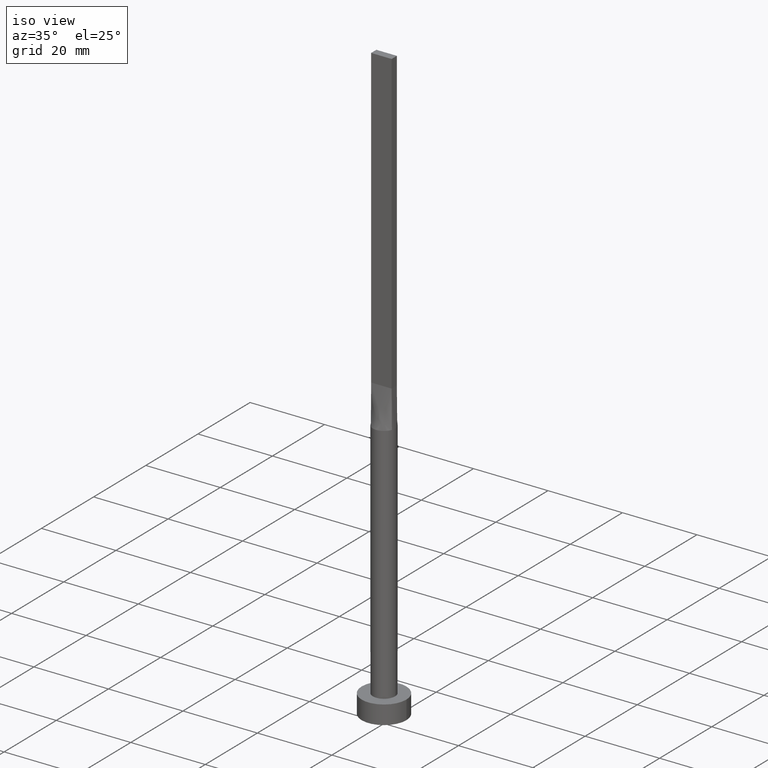
[diagram: clean part render]
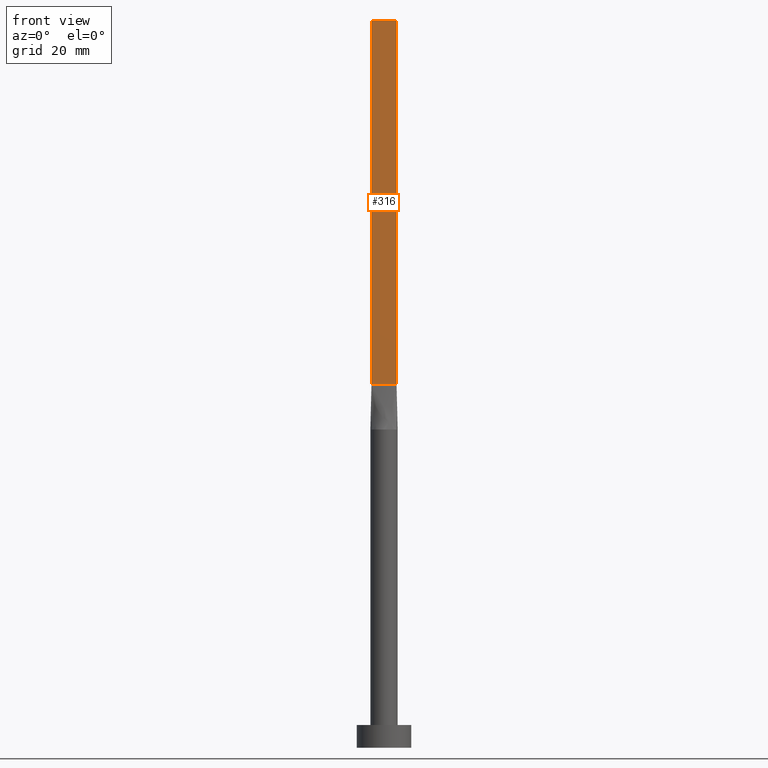
[diagram: tour spotlight — one face highlighted and labeled with its STEP entity id]
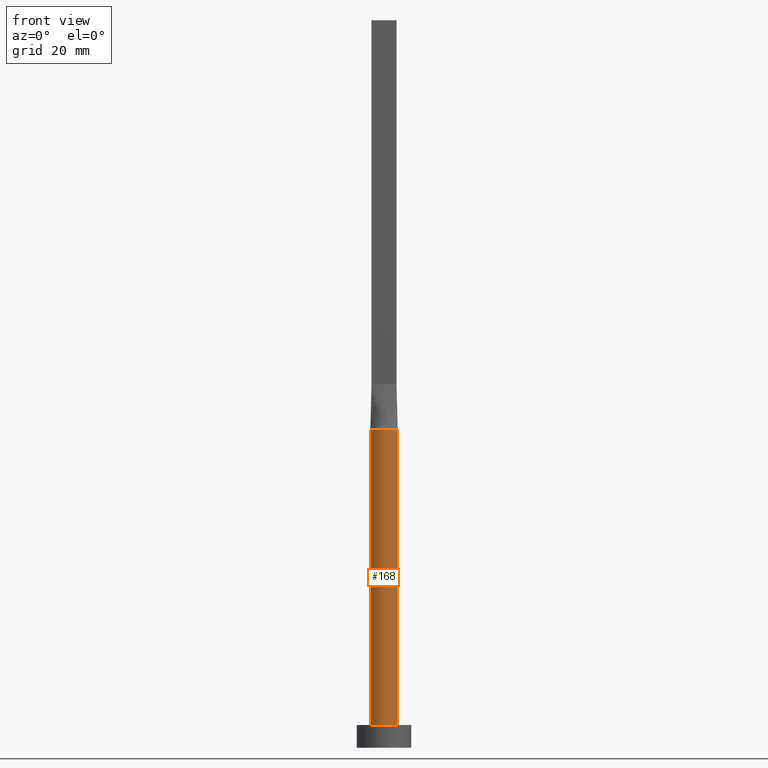
[diagram: tour spotlight — one face highlighted and labeled with its STEP entity id]
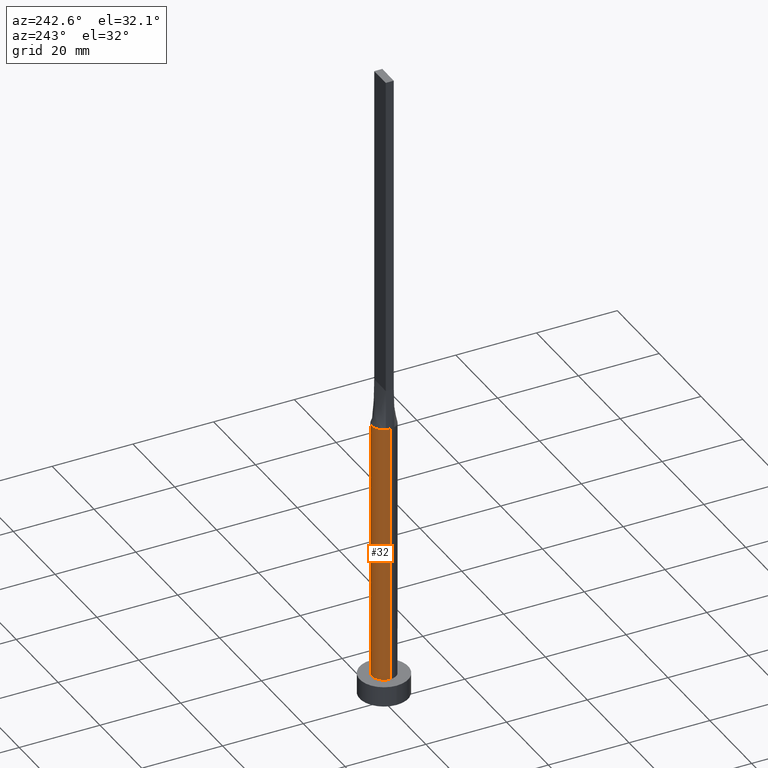
[diagram: tour spotlight — one face highlighted and labeled with its STEP entity id]
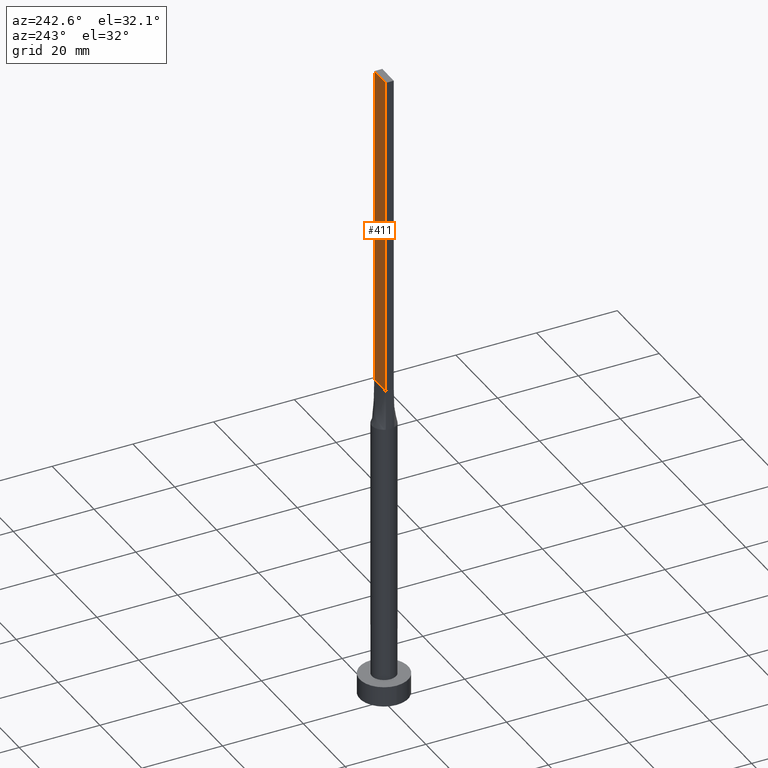
[diagram: tour spotlight — one face highlighted and labeled with its STEP entity id]
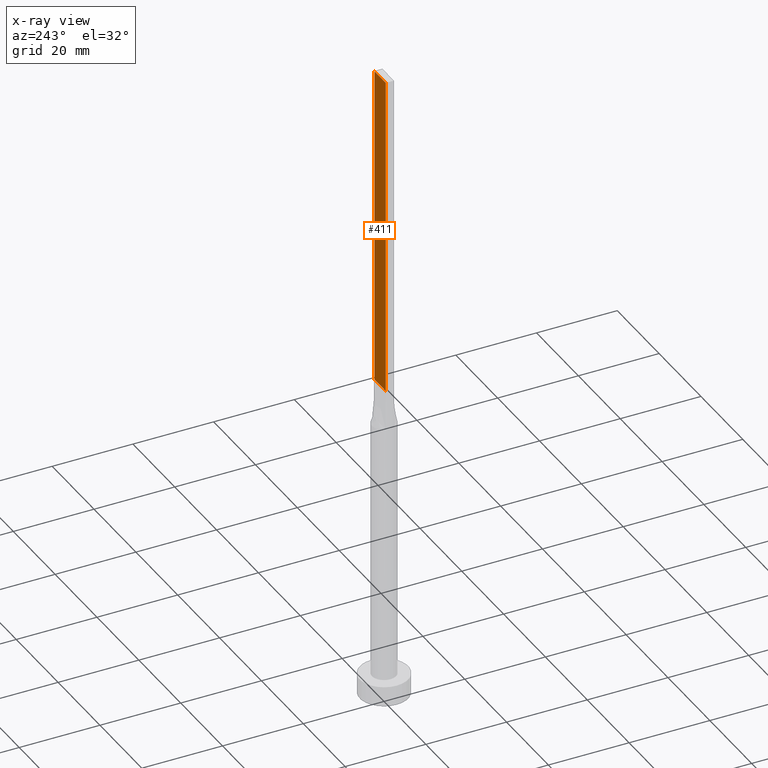
[diagram: x-ray of the same camera — body ghosted, this tour face saturated]
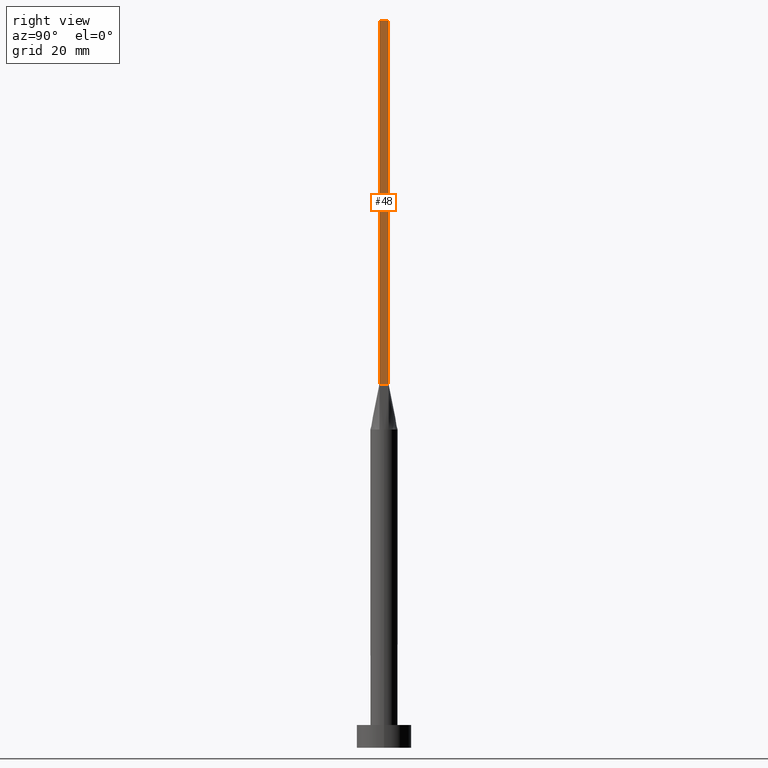
[diagram: tour spotlight — one face highlighted and labeled with its STEP entity id]
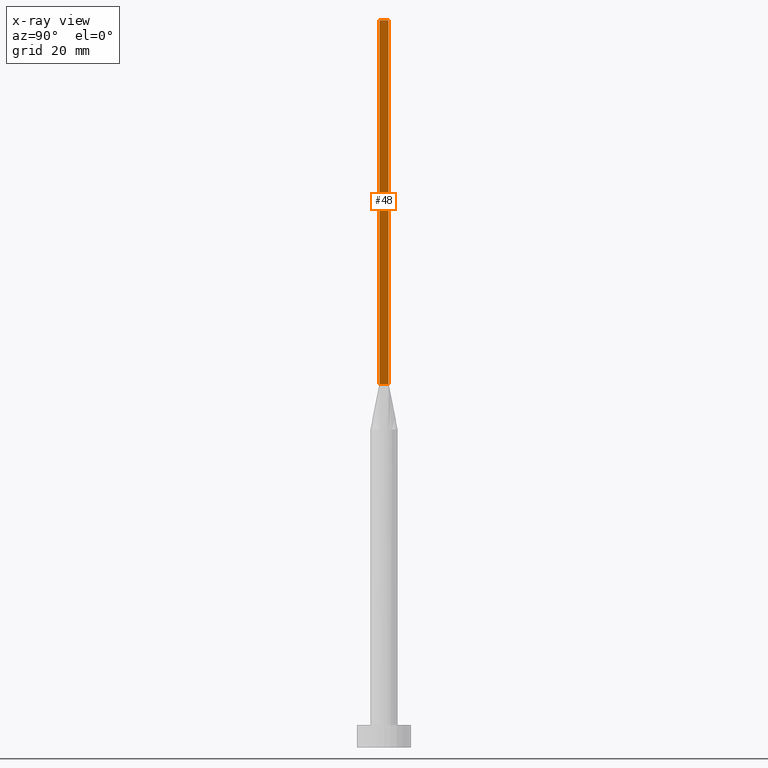
[diagram: x-ray of the same camera — body ghosted, this tour face saturated]
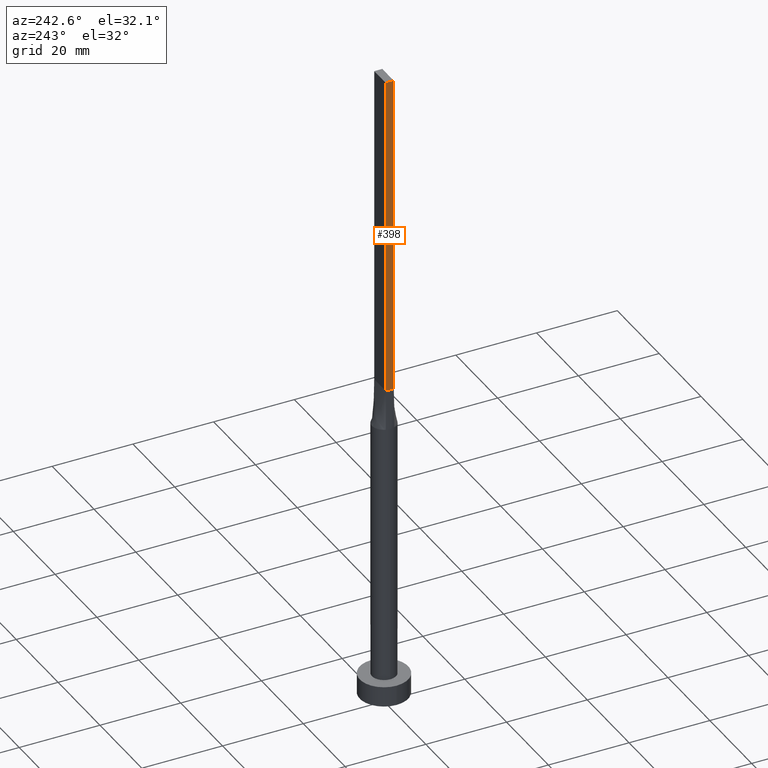
[diagram: tour spotlight — one face highlighted and labeled with its STEP entity id]
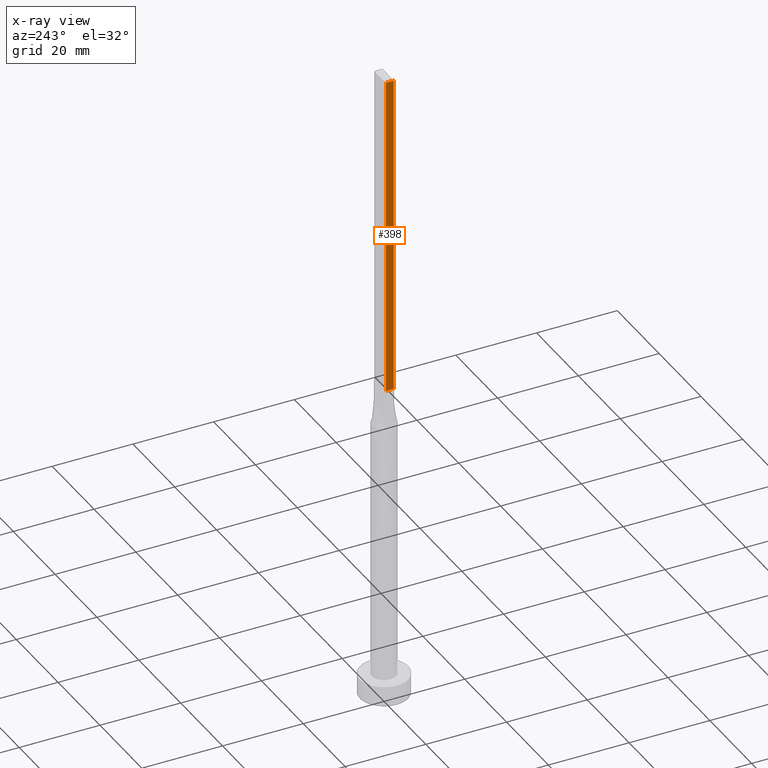
[diagram: x-ray of the same camera — body ghosted, this tour face saturated]
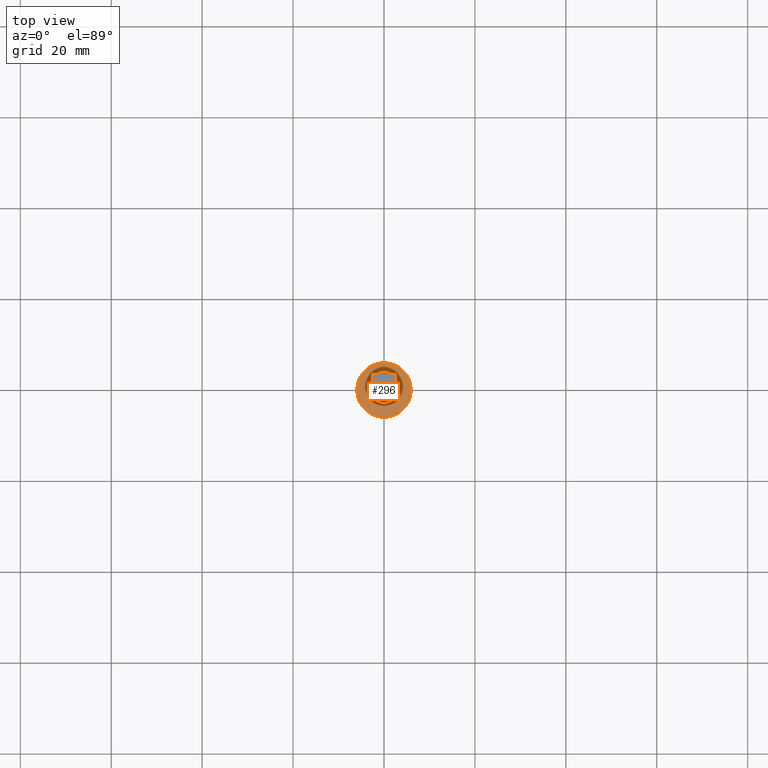
[diagram: tour spotlight — one face highlighted and labeled with its STEP entity id]
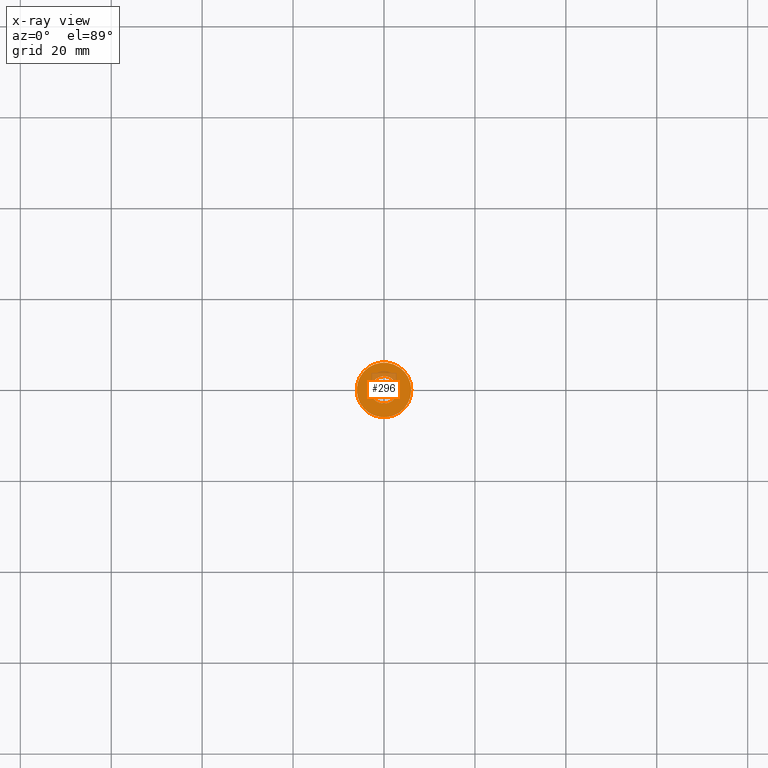
[diagram: x-ray of the same camera — body ghosted, this tour face saturated]
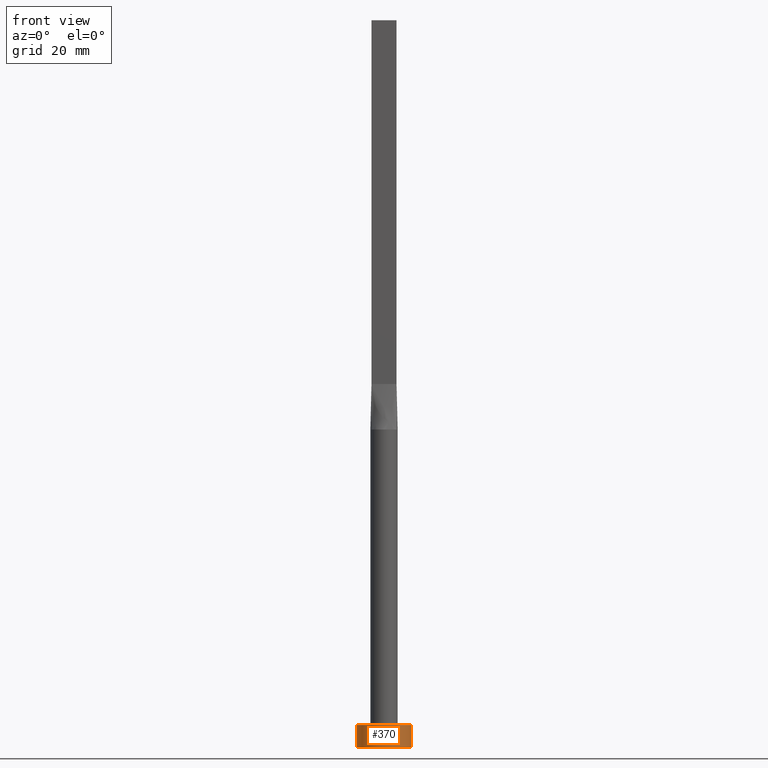
[diagram: tour spotlight — one face highlighted and labeled with its STEP entity id]
A machine part: a face-by-face anatomy tour. The part has 15 B-rep faces; the first image is the clean iso view, then the 8 largest visible faces are spotlighted one at a time (largest first), each with its STEP entity span.

Face 1 — front view, entity #316. In plain terms, the highlighted planar face has unit normal (0, 1, -0).
Definition (entity closure, byte-faithful):
#2 = EDGE_CURVE ( 'NONE', #350, #322, #468, .T. ) ;
#16 = ORIENTED_EDGE ( 'NONE', *, *, #57, .F. ) ;
#20 = LINE ( 'NONE', #513, #576 ) ;
#57 = EDGE_CURVE ( 'NONE', #322, #462, #249, .T. ) ;
#68 = DIRECTION ( 'NONE',  ( 7.885106708985487801E-17, 1.000000000000000000, -0.000000000000000000 ) ) ;
#87 = LINE ( 'NONE', #257, #116 ) ;
#116 = VECTOR ( 'NONE', #217, 1000.000000000000000 ) ;
#143 = EDGE_CURVE ( 'NONE', #350, #507, #20, .T. ) ;
#144 = DIRECTION ( 'NONE',  ( -1.000000000000000000, 7.885106708985487801E-17, 0.000000000000000000 ) ) ;
#148 = ORIENTED_EDGE ( 'NONE', *, *, #2, .F. ) ;
#159 = FACE_OUTER_BOUND ( 'NONE', #477, .T. ) ;
#174 = CARTESIAN_POINT ( 'NONE',  ( 2.750000000000000000, -0.9999999999999997780, 80.00000000000000000 ) ) ;
#211 = DIRECTION ( 'NONE',  ( -0.000000000000000000, -0.000000000000000000, -1.000000000000000000 ) ) ;
#217 = DIRECTION ( 'NONE',  ( 1.000000000000000000, -7.885106708985487801E-17, 0.000000000000000000 ) ) ;
#223 = CARTESIAN_POINT ( 'NONE',  ( -2.750000000000000000, -0.9999999999999993339, 80.00000000000000000 ) ) ;
#226 = EDGE_CURVE ( 'NONE', #507, #462, #87, .T. ) ;
#229 = CARTESIAN_POINT ( 'NONE',  ( -2.750000000000000000, -0.9999999999999993339, 160.0000000000000000 ) ) ;
#236 = VECTOR ( 'NONE', #211, 1000.000000000000000 ) ;
#239 = CARTESIAN_POINT ( 'NONE',  ( -2.750000000000000000, -0.9999999999999993339, 160.0000000000000000 ) ) ;
#240 = AXIS2_PLACEMENT_3D ( 'NONE', #229, #68, #144 ) ;
#247 = CARTESIAN_POINT ( 'NONE',  ( -2.750000000000000000, -0.9999999999999993339, 160.0000000000000000 ) ) ;
#249 = LINE ( 'NONE', #440, #236 ) ;
#254 = DIRECTION ( 'NONE',  ( 1.000000000000000000, -7.885106708985487801E-17, 0.000000000000000000 ) ) ;
#257 = CARTESIAN_POINT ( 'NONE',  ( -2.750000000000000000, -0.9999999999999993339, 80.00000000000000000 ) ) ;
#286 = ORIENTED_EDGE ( 'NONE', *, *, #143, .T. ) ;
#316 = ADVANCED_FACE ( 'NONE', ( #159 ), #326, .F. ) ;
#322 = VERTEX_POINT ( 'NONE', #415 ) ;
#326 = PLANE ( 'NONE',  #240 ) ;
#350 = VERTEX_POINT ( 'NONE', #247 ) ;
#399 = ORIENTED_EDGE ( 'NONE', *, *, #226, .T. ) ;
#415 = CARTESIAN_POINT ( 'NONE',  ( 2.750000000000000000, -0.9999999999999997780, 160.0000000000000000 ) ) ;
#420 = DIRECTION ( 'NONE',  ( -0.000000000000000000, -0.000000000000000000, -1.000000000000000000 ) ) ;
#440 = CARTESIAN_POINT ( 'NONE',  ( 2.750000000000000000, -0.9999999999999997780, 160.0000000000000000 ) ) ;
#462 = VERTEX_POINT ( 'NONE', #174 ) ;
#468 = LINE ( 'NONE', #239, #554 ) ;
#477 = EDGE_LOOP ( 'NONE', ( #399, #16, #148, #286 ) ) ;
#507 = VERTEX_POINT ( 'NONE', #223 ) ;
#513 = CARTESIAN_POINT ( 'NONE',  ( -2.750000000000000000, -0.9999999999999993339, 160.0000000000000000 ) ) ;
#554 = VECTOR ( 'NONE', #254, 1000.000000000000000 ) ;
#576 = VECTOR ( 'NONE', #420, 1000.000000000000000 ) ;

Face 2 — front view, entity #168. In plain terms, the highlighted cylindrical surface (edge-blend (fillet) strip) has radius 3 mm, axis along (-0, -0, -1).
Definition (entity closure, byte-faithful):
#6 = EDGE_LOOP ( 'NONE', ( #13, #372, #408, #58, #325, #424 ) ) ;
#13 = ORIENTED_EDGE ( 'NONE', *, *, #501, .F. ) ;
#36 = DIRECTION ( 'NONE',  ( 0.000000000000000000, 0.000000000000000000, 1.000000000000000000 ) ) ;
#47 = CARTESIAN_POINT ( 'NONE',  ( 0.000000000000000000, 0.000000000000000000, 5.000000000000000000 ) ) ;
#51 = AXIS2_PLACEMENT_3D ( 'NONE', #450, #220, #83 ) ;
#56 = CARTESIAN_POINT ( 'NONE',  ( 3.000000000000000444, 7.514166843208536743E-18, 70.00000000000000000 ) ) ;
#58 = ORIENTED_EDGE ( 'NONE', *, *, #385, .F. ) ;
#67 = CARTESIAN_POINT ( 'NONE',  ( 0.000000000000000000, 0.000000000000000000, 70.00000000000000000 ) ) ;
#71 = CARTESIAN_POINT ( 'NONE',  ( -2.819413526938078007, -1.025241406939941369, 70.00000000000000000 ) ) ;
#83 = DIRECTION ( 'NONE',  ( 1.000000000000000000, 0.000000000000000000, 0.000000000000000000 ) ) ;
#104 = CARTESIAN_POINT ( 'NONE',  ( 3.000000000000000444, 3.673940397442060361E-16, 5.000000000000000000 ) ) ;
#106 = DIRECTION ( 'NONE',  ( -0.000000000000000000, -0.000000000000000000, -1.000000000000000000 ) ) ;
#121 = CARTESIAN_POINT ( 'NONE',  ( 2.819430526142641558, -1.025247683279450817, 70.00000000000000000 ) ) ;
#127 = AXIS2_PLACEMENT_3D ( 'NONE', #67, #285, #238 ) ;
#138 = VERTEX_POINT ( 'NONE', #71 ) ;
#142 = CARTESIAN_POINT ( 'NONE',  ( 3.000000000000000444, 3.673940397442060361E-16, 70.00000000000000000 ) ) ;
#150 = LINE ( 'NONE', #321, #166 ) ;
#154 = FACE_OUTER_BOUND ( 'NONE', #6, .T. ) ;
#166 = VECTOR ( 'NONE', #106, 1000.000000000000000 ) ;
#168 = ADVANCED_FACE ( 'NONE', ( #154 ), #379, .T. ) ;
#208 = AXIS2_PLACEMENT_3D ( 'NONE', #47, #391, #487 ) ;
#216 = EDGE_CURVE ( 'NONE', #138, #359, #486, .T. ) ;
#220 = DIRECTION ( 'NONE',  ( 0.000000000000000000, 0.000000000000000000, 1.000000000000000000 ) ) ;
#238 = DIRECTION ( 'NONE',  ( -1.000000000000000000, 0.000000000000000000, 0.000000000000000000 ) ) ;
#251 = DIRECTION ( 'NONE',  ( 1.000000000000000000, 0.000000000000000000, 0.000000000000000000 ) ) ;
#285 = DIRECTION ( 'NONE',  ( -0.000000000000000000, -0.000000000000000000, -1.000000000000000000 ) ) ;
#313 = VERTEX_POINT ( 'NONE', #104 ) ;
#315 = VECTOR ( 'NONE', #459, 1000.000000000000000 ) ;
#321 = CARTESIAN_POINT ( 'NONE',  ( -3.000000000000000444, 0.000000000000000000, 70.00000000000000000 ) ) ;
#325 = ORIENTED_EDGE ( 'NONE', *, *, #345, .T. ) ;
#335 = AXIS2_PLACEMENT_3D ( 'NONE', #344, #490, #533 ) ;
#344 = CARTESIAN_POINT ( 'NONE',  ( 0.000000000000000000, 0.000000000000000000, 70.00000000000000000 ) ) ;
#345 = EDGE_CURVE ( 'NONE', #456, #453, #150, .T. ) ;
#359 = VERTEX_POINT ( 'NONE', #121 ) ;
#372 = ORIENTED_EDGE ( 'NONE', *, *, #393, .F. ) ;
#379 = CYLINDRICAL_SURFACE ( 'NONE', #127, 3.000000000000000444 ) ;
#385 = EDGE_CURVE ( 'NONE', #456, #138, #463, .T. ) ;
#388 = CIRCLE ( 'NONE', #208, 3.000000000000000444 ) ;
#391 = DIRECTION ( 'NONE',  ( 0.000000000000000000, 0.000000000000000000, 1.000000000000000000 ) ) ;
#393 = EDGE_CURVE ( 'NONE', #359, #465, #397, .T. ) ;
#394 = CARTESIAN_POINT ( 'NONE',  ( -3.000000000000000444, -1.370010780910363192E-16, 70.00000000000000000 ) ) ;
#397 = CIRCLE ( 'NONE', #335, 3.000000000000000444 ) ;
#402 = CARTESIAN_POINT ( 'NONE',  ( -3.000000000000000444, 0.000000000000000000, 5.000000000000000000 ) ) ;
#408 = ORIENTED_EDGE ( 'NONE', *, *, #216, .F. ) ;
#424 = ORIENTED_EDGE ( 'NONE', *, *, #439, .T. ) ;
#439 = EDGE_CURVE ( 'NONE', #453, #313, #388, .T. ) ;
#450 = CARTESIAN_POINT ( 'NONE',  ( 0.000000000000000000, 0.000000000000000000, 70.00000000000000000 ) ) ;
#453 = VERTEX_POINT ( 'NONE', #402 ) ;
#456 = VERTEX_POINT ( 'NONE', #394 ) ;
#457 = LINE ( 'NONE', #142, #315 ) ;
#459 = DIRECTION ( 'NONE',  ( -0.000000000000000000, -0.000000000000000000, -1.000000000000000000 ) ) ;
#463 = CIRCLE ( 'NONE', #474, 3.000000000000000444 ) ;
#465 = VERTEX_POINT ( 'NONE', #56 ) ;
#474 = AXIS2_PLACEMENT_3D ( 'NONE', #478, #36, #251 ) ;
#478 = CARTESIAN_POINT ( 'NONE',  ( 0.000000000000000000, 0.000000000000000000, 70.00000000000000000 ) ) ;
#486 = CIRCLE ( 'NONE', #51, 3.000000000000000444 ) ;
#487 = DIRECTION ( 'NONE',  ( 1.000000000000000000, 0.000000000000000000, 0.000000000000000000 ) ) ;
#490 = DIRECTION ( 'NONE',  ( 0.000000000000000000, 0.000000000000000000, 1.000000000000000000 ) ) ;
#501 = EDGE_CURVE ( 'NONE', #465, #313, #457, .T. ) ;
#533 = DIRECTION ( 'NONE',  ( 1.000000000000000000, 8.881784197001252323E-16, 0.000000000000000000 ) ) ;

Face 3 — auxiliary view, entity #32. In plain terms, the highlighted cylindrical surface (edge-blend (fillet) strip) has radius 3 mm, axis along (-0, -0, -1).
Definition (entity closure, byte-faithful):
#4 = CARTESIAN_POINT ( 'NONE',  ( -1.627925520694712747, 2.539128397820341831, 70.00000000000000000 ) ) ;
#9 = VERTEX_POINT ( 'NONE', #536 ) ;
#10 = EDGE_CURVE ( 'NONE', #465, #300, #511, .T. ) ;
#12 = CARTESIAN_POINT ( 'NONE',  ( 0.000000000000000000, 0.000000000000000000, 70.00000000000000000 ) ) ;
#29 = CARTESIAN_POINT ( 'NONE',  ( 0.000000000000000000, 0.000000000000000000, 5.000000000000000000 ) ) ;
#32 = ADVANCED_FACE ( 'NONE', ( #259 ), #253, .T. ) ;
#43 = CARTESIAN_POINT ( 'NONE',  ( 2.739088299662392867, 1.246032108968142538, 70.00000000000002842 ) ) ;
#56 = CARTESIAN_POINT ( 'NONE',  ( 3.000000000000000444, 7.514166843208536743E-18, 70.00000000000000000 ) ) ;
#70 = B_SPLINE_CURVE_WITH_KNOTS ( 'NONE', 3,
 ( #406, #43, #496, #535, #360, #445, #489, #252, #441, #129, #297, #396, #4, #349, #538, #130, #298, #493 ),
 .UNSPECIFIED., .F., .F.,
 ( 4, 2, 2, 2, 2, 2, 2, 2, 4 ),
 ( 0.000000000000000000, 0.1249999999999998890, 0.2499999999999997780, 0.3749999999999997780, 0.4999999999999997780, 0.6249999999999997780, 0.7499999999999997780, 0.8749999999999998890, 1.000000000000000000 ),
 .UNSPECIFIED. ) ;
#89 = EDGE_CURVE ( 'NONE', #313, #453, #481, .T. ) ;
#104 = CARTESIAN_POINT ( 'NONE',  ( 3.000000000000000444, 3.673940397442060361E-16, 5.000000000000000000 ) ) ;
#106 = DIRECTION ( 'NONE',  ( -0.000000000000000000, -0.000000000000000000, -1.000000000000000000 ) ) ;
#112 = ORIENTED_EDGE ( 'NONE', *, *, #10, .F. ) ;
#124 = DIRECTION ( 'NONE',  ( 1.000000000000000000, 0.000000000000000000, 0.000000000000000000 ) ) ;
#129 = CARTESIAN_POINT ( 'NONE',  ( -0.3502136323054376721, 2.999999999999999112, 70.00000000000001421 ) ) ;
#130 = CARTESIAN_POINT ( 'NONE',  ( -2.625980160873452096, 1.476334031700886396, 69.99999999999998579 ) ) ;
#137 = AXIS2_PLACEMENT_3D ( 'NONE', #12, #352, #175 ) ;
#142 = CARTESIAN_POINT ( 'NONE',  ( 3.000000000000000444, 3.673940397442060361E-16, 70.00000000000000000 ) ) ;
#150 = LINE ( 'NONE', #321, #166 ) ;
#153 = CIRCLE ( 'NONE', #137, 3.000000000000000444 ) ;
#166 = VECTOR ( 'NONE', #106, 1000.000000000000000 ) ;
#175 = DIRECTION ( 'NONE',  ( 1.000000000000000000, 0.000000000000000000, 0.000000000000000000 ) ) ;
#178 = ORIENTED_EDGE ( 'NONE', *, *, #501, .T. ) ;
#180 = EDGE_CURVE ( 'NONE', #9, #456, #153, .T. ) ;
#189 = AXIS2_PLACEMENT_3D ( 'NONE', #342, #351, #124 ) ;
#190 = AXIS2_PLACEMENT_3D ( 'NONE', #212, #447, #341 ) ;
#191 = ORIENTED_EDGE ( 'NONE', *, *, #89, .T. ) ;
#196 = DIRECTION ( 'NONE',  ( 1.000000000000000000, 0.000000000000000000, 0.000000000000000000 ) ) ;
#212 = CARTESIAN_POINT ( 'NONE',  ( 0.000000000000000000, 0.000000000000000000, 70.00000000000000000 ) ) ;
#221 = EDGE_CURVE ( 'NONE', #300, #9, #70, .T. ) ;
#252 = CARTESIAN_POINT ( 'NONE',  ( 0.6998073349918605413, 2.936959335800557014, 69.99999999999997158 ) ) ;
#253 = CYLINDRICAL_SURFACE ( 'NONE', #190, 3.000000000000000444 ) ;
#259 = FACE_OUTER_BOUND ( 'NONE', #268, .T. ) ;
#268 = EDGE_LOOP ( 'NONE', ( #112, #178, #191, #517, #510, #471 ) ) ;
#297 = CARTESIAN_POINT ( 'NONE',  ( -0.6998073349918608743, 2.936959335800557014, 70.00000000000000000 ) ) ;
#298 = CARTESIAN_POINT ( 'NONE',  ( -2.739088299662392423, 1.246032108968142316, 70.00000000000000000 ) ) ;
#300 = VERTEX_POINT ( 'NONE', #562 ) ;
#313 = VERTEX_POINT ( 'NONE', #104 ) ;
#315 = VECTOR ( 'NONE', #459, 1000.000000000000000 ) ;
#321 = CARTESIAN_POINT ( 'NONE',  ( -3.000000000000000444, 0.000000000000000000, 70.00000000000000000 ) ) ;
#331 = DIRECTION ( 'NONE',  ( 0.000000000000000000, 0.000000000000000000, 1.000000000000000000 ) ) ;
#341 = DIRECTION ( 'NONE',  ( -1.000000000000000000, 0.000000000000000000, 0.000000000000000000 ) ) ;
#342 = CARTESIAN_POINT ( 'NONE',  ( 0.000000000000000000, 0.000000000000000000, 70.00000000000000000 ) ) ;
#345 = EDGE_CURVE ( 'NONE', #456, #453, #150, .T. ) ;
#349 = CARTESIAN_POINT ( 'NONE',  ( -2.115507543051069916, 2.149870311632977593, 69.99999999999998579 ) ) ;
#351 = DIRECTION ( 'NONE',  ( 0.000000000000000000, 0.000000000000000000, 1.000000000000000000 ) ) ;
#352 = DIRECTION ( 'NONE',  ( 0.000000000000000000, 0.000000000000000000, 1.000000000000000000 ) ) ;
#360 = CARTESIAN_POINT ( 'NONE',  ( 2.115507543051069916, 2.149870311632976705, 70.00000000000001421 ) ) ;
#394 = CARTESIAN_POINT ( 'NONE',  ( -3.000000000000000444, -1.370010780910363192E-16, 70.00000000000000000 ) ) ;
#396 = CARTESIAN_POINT ( 'NONE',  ( -1.338960936578149408, 2.706038443291637119, 69.99999999999998579 ) ) ;
#402 = CARTESIAN_POINT ( 'NONE',  ( -3.000000000000000444, 0.000000000000000000, 5.000000000000000000 ) ) ;
#406 = CARTESIAN_POINT ( 'NONE',  ( 2.819412401233197141, 1.025240989080170806, 70.00000000000000000 ) ) ;
#441 = CARTESIAN_POINT ( 'NONE',  ( 0.3502136323054376721, 3.000000000000000444, 70.00000000000000000 ) ) ;
#445 = CARTESIAN_POINT ( 'NONE',  ( 1.627925520694712080, 2.539128397820340943, 69.99999999999998579 ) ) ;
#447 = DIRECTION ( 'NONE',  ( -0.000000000000000000, -0.000000000000000000, -1.000000000000000000 ) ) ;
#453 = VERTEX_POINT ( 'NONE', #402 ) ;
#456 = VERTEX_POINT ( 'NONE', #394 ) ;
#457 = LINE ( 'NONE', #142, #315 ) ;
#459 = DIRECTION ( 'NONE',  ( -0.000000000000000000, -0.000000000000000000, -1.000000000000000000 ) ) ;
#465 = VERTEX_POINT ( 'NONE', #56 ) ;
#471 = ORIENTED_EDGE ( 'NONE', *, *, #221, .F. ) ;
#481 = CIRCLE ( 'NONE', #530, 3.000000000000000444 ) ;
#489 = CARTESIAN_POINT ( 'NONE',  ( 1.338960936578149630, 2.706038443291637563, 70.00000000000000000 ) ) ;
#493 = CARTESIAN_POINT ( 'NONE',  ( -2.819429393986302657, 1.025247261300842760, 70.00000000000000000 ) ) ;
#496 = CARTESIAN_POINT ( 'NONE',  ( 2.625980160873452540, 1.476334031700886618, 70.00000000000000000 ) ) ;
#501 = EDGE_CURVE ( 'NONE', #465, #313, #457, .T. ) ;
#510 = ORIENTED_EDGE ( 'NONE', *, *, #180, .F. ) ;
#511 = CIRCLE ( 'NONE', #189, 3.000000000000000444 ) ;
#517 = ORIENTED_EDGE ( 'NONE', *, *, #345, .F. ) ;
#530 = AXIS2_PLACEMENT_3D ( 'NONE', #29, #331, #196 ) ;
#535 = CARTESIAN_POINT ( 'NONE',  ( 2.314486317179579977, 1.928337902455807384, 70.00000000000002842 ) ) ;
#536 = CARTESIAN_POINT ( 'NONE',  ( -2.819429393986302657, 1.025247261300842760, 70.00000000000000000 ) ) ;
#538 = CARTESIAN_POINT ( 'NONE',  ( -2.314486317179579977, 1.928337902455808051, 70.00000000000000000 ) ) ;
#562 = CARTESIAN_POINT ( 'NONE',  ( 2.819412401233197141, 1.025240989080170806, 70.00000000000000000 ) ) ;

Face 4 — auxiliary view, entity #411. An x-ray twin of the same camera follows (body ghosted, this face saturated) — the face is partly hidden behind the body. In plain terms, the highlighted planar face has unit normal (0, -1, 0).
Definition (entity closure, byte-faithful):
#15 = EDGE_LOOP ( 'NONE', ( #105, #198, #545, #31 ) ) ;
#22 = DIRECTION ( 'NONE',  ( -1.000000000000000000, 0.000000000000000000, 0.000000000000000000 ) ) ;
#31 = ORIENTED_EDGE ( 'NONE', *, *, #126, .T. ) ;
#39 = CARTESIAN_POINT ( 'NONE',  ( 2.749999999999999556, 1.000000000000000000, 160.0000000000000000 ) ) ;
#49 = VERTEX_POINT ( 'NONE', #79 ) ;
#64 = EDGE_CURVE ( 'NONE', #49, #181, #392, .T. ) ;
#72 = VERTEX_POINT ( 'NONE', #369 ) ;
#78 = VECTOR ( 'NONE', #577, 1000.000000000000000 ) ;
#79 = CARTESIAN_POINT ( 'NONE',  ( -2.749999999999999556, 1.000000000000000000, 160.0000000000000000 ) ) ;
#96 = VECTOR ( 'NONE', #22, 1000.000000000000000 ) ;
#105 = ORIENTED_EDGE ( 'NONE', *, *, #544, .T. ) ;
#111 = DIRECTION ( 'NONE',  ( -0.000000000000000000, -0.000000000000000000, -1.000000000000000000 ) ) ;
#126 = EDGE_CURVE ( 'NONE', #272, #72, #423, .T. ) ;
#147 = DIRECTION ( 'NONE',  ( 0.000000000000000000, -1.000000000000000000, 0.000000000000000000 ) ) ;
#156 = DIRECTION ( 'NONE',  ( 0.000000000000000000, -0.000000000000000000, -1.000000000000000000 ) ) ;
#171 = CARTESIAN_POINT ( 'NONE',  ( -2.749999999999999556, 1.000000000000000000, 160.0000000000000000 ) ) ;
#181 = VERTEX_POINT ( 'NONE', #347 ) ;
#198 = ORIENTED_EDGE ( 'NONE', *, *, #64, .F. ) ;
#215 = VECTOR ( 'NONE', #431, 1000.000000000000000 ) ;
#272 = VERTEX_POINT ( 'NONE', #39 ) ;
#275 = CARTESIAN_POINT ( 'NONE',  ( 2.749999999999999556, 1.000000000000000000, 160.0000000000000000 ) ) ;
#280 = EDGE_CURVE ( 'NONE', #272, #49, #330, .T. ) ;
#288 = CARTESIAN_POINT ( 'NONE',  ( 2.749999999999999556, 1.000000000000000000, 160.0000000000000000 ) ) ;
#324 = LINE ( 'NONE', #559, #215 ) ;
#330 = LINE ( 'NONE', #523, #96 ) ;
#347 = CARTESIAN_POINT ( 'NONE',  ( -2.749999999999999556, 1.000000000000000000, 80.00000000000000000 ) ) ;
#369 = CARTESIAN_POINT ( 'NONE',  ( 2.749999999999999556, 1.000000000000000000, 80.00000000000000000 ) ) ;
#371 = FACE_OUTER_BOUND ( 'NONE', #15, .T. ) ;
#392 = LINE ( 'NONE', #171, #78 ) ;
#411 = ADVANCED_FACE ( 'NONE', ( #371 ), #412, .F. ) ;
#412 = PLANE ( 'NONE',  #526 ) ;
#423 = LINE ( 'NONE', #288, #451 ) ;
#431 = DIRECTION ( 'NONE',  ( -1.000000000000000000, -0.000000000000000000, -0.000000000000000000 ) ) ;
#451 = VECTOR ( 'NONE', #111, 1000.000000000000000 ) ;
#523 = CARTESIAN_POINT ( 'NONE',  ( 2.749999999999999556, 1.000000000000000000, 160.0000000000000000 ) ) ;
#526 = AXIS2_PLACEMENT_3D ( 'NONE', #275, #147, #156 ) ;
#544 = EDGE_CURVE ( 'NONE', #72, #181, #324, .T. ) ;
#545 = ORIENTED_EDGE ( 'NONE', *, *, #280, .F. ) ;
#559 = CARTESIAN_POINT ( 'NONE',  ( -2.749999999999999556, 1.000000000000000000, 80.00000000000000000 ) ) ;
#577 = DIRECTION ( 'NONE',  ( -0.000000000000000000, -0.000000000000000000, -1.000000000000000000 ) ) ;

Face 5 — right view, entity #48. An x-ray twin of the same camera follows (body ghosted, this face saturated) — the face is partly hidden behind the body. In plain terms, the highlighted planar face has unit normal (-1, -0, 0).
Definition (entity closure, byte-faithful):
#1 = PLANE ( 'NONE',  #320 ) ;
#7 = CARTESIAN_POINT ( 'NONE',  ( 2.750000000000000000, -0.9999999999999997780, 160.0000000000000000 ) ) ;
#24 = EDGE_CURVE ( 'NONE', #462, #72, #88, .T. ) ;
#39 = CARTESIAN_POINT ( 'NONE',  ( 2.749999999999999556, 1.000000000000000000, 160.0000000000000000 ) ) ;
#48 = ADVANCED_FACE ( 'NONE', ( #484 ), #1, .F. ) ;
#50 = ORIENTED_EDGE ( 'NONE', *, *, #57, .T. ) ;
#57 = EDGE_CURVE ( 'NONE', #322, #462, #249, .T. ) ;
#72 = VERTEX_POINT ( 'NONE', #369 ) ;
#88 = LINE ( 'NONE', #390, #458 ) ;
#92 = EDGE_LOOP ( 'NONE', ( #521, #405, #271, #50 ) ) ;
#111 = DIRECTION ( 'NONE',  ( -0.000000000000000000, -0.000000000000000000, -1.000000000000000000 ) ) ;
#126 = EDGE_CURVE ( 'NONE', #272, #72, #423, .T. ) ;
#174 = CARTESIAN_POINT ( 'NONE',  ( 2.750000000000000000, -0.9999999999999997780, 80.00000000000000000 ) ) ;
#211 = DIRECTION ( 'NONE',  ( -0.000000000000000000, -0.000000000000000000, -1.000000000000000000 ) ) ;
#218 = DIRECTION ( 'NONE',  ( -2.168404344971008868E-16, 1.000000000000000000, -0.000000000000000000 ) ) ;
#236 = VECTOR ( 'NONE', #211, 1000.000000000000000 ) ;
#249 = LINE ( 'NONE', #440, #236 ) ;
#255 = EDGE_CURVE ( 'NONE', #322, #272, #400, .T. ) ;
#271 = ORIENTED_EDGE ( 'NONE', *, *, #255, .F. ) ;
#272 = VERTEX_POINT ( 'NONE', #39 ) ;
#288 = CARTESIAN_POINT ( 'NONE',  ( 2.749999999999999556, 1.000000000000000000, 160.0000000000000000 ) ) ;
#294 = DIRECTION ( 'NONE',  ( 2.168404344971008868E-16, -1.000000000000000000, 0.000000000000000000 ) ) ;
#320 = AXIS2_PLACEMENT_3D ( 'NONE', #401, #498, #294 ) ;
#322 = VERTEX_POINT ( 'NONE', #415 ) ;
#369 = CARTESIAN_POINT ( 'NONE',  ( 2.749999999999999556, 1.000000000000000000, 80.00000000000000000 ) ) ;
#374 = VECTOR ( 'NONE', #430, 1000.000000000000000 ) ;
#390 = CARTESIAN_POINT ( 'NONE',  ( 2.749999999999999556, 1.000000000000000000, 80.00000000000000000 ) ) ;
#400 = LINE ( 'NONE', #7, #374 ) ;
#401 = CARTESIAN_POINT ( 'NONE',  ( 2.750000000000000000, -0.9999999999999997780, 160.0000000000000000 ) ) ;
#405 = ORIENTED_EDGE ( 'NONE', *, *, #126, .F. ) ;
#415 = CARTESIAN_POINT ( 'NONE',  ( 2.750000000000000000, -0.9999999999999997780, 160.0000000000000000 ) ) ;
#423 = LINE ( 'NONE', #288, #451 ) ;
#430 = DIRECTION ( 'NONE',  ( -2.168404344971008868E-16, 1.000000000000000000, 0.000000000000000000 ) ) ;
#440 = CARTESIAN_POINT ( 'NONE',  ( 2.750000000000000000, -0.9999999999999997780, 160.0000000000000000 ) ) ;
#451 = VECTOR ( 'NONE', #111, 1000.000000000000000 ) ;
#458 = VECTOR ( 'NONE', #218, 1000.000000000000000 ) ;
#462 = VERTEX_POINT ( 'NONE', #174 ) ;
#484 = FACE_OUTER_BOUND ( 'NONE', #92, .T. ) ;
#498 = DIRECTION ( 'NONE',  ( -1.000000000000000000, -2.168404344971008868E-16, 0.000000000000000000 ) ) ;
#521 = ORIENTED_EDGE ( 'NONE', *, *, #24, .T. ) ;

Face 6 — auxiliary view, entity #398. An x-ray twin of the same camera follows (body ghosted, this face saturated) — the face is partly hidden behind the body. In plain terms, the highlighted planar face has unit normal (1, -0, 0).
Definition (entity closure, byte-faithful):
#20 = LINE ( 'NONE', #513, #576 ) ;
#25 = ORIENTED_EDGE ( 'NONE', *, *, #143, .F. ) ;
#49 = VERTEX_POINT ( 'NONE', #79 ) ;
#64 = EDGE_CURVE ( 'NONE', #49, #181, #392, .T. ) ;
#76 = FACE_OUTER_BOUND ( 'NONE', #95, .T. ) ;
#78 = VECTOR ( 'NONE', #577, 1000.000000000000000 ) ;
#79 = CARTESIAN_POINT ( 'NONE',  ( -2.749999999999999556, 1.000000000000000000, 160.0000000000000000 ) ) ;
#95 = EDGE_LOOP ( 'NONE', ( #306, #25, #524, #279 ) ) ;
#103 = CARTESIAN_POINT ( 'NONE',  ( -2.749999999999999556, 1.000000000000000000, 80.00000000000000000 ) ) ;
#108 = LINE ( 'NONE', #278, #466 ) ;
#139 = DIRECTION ( 'NONE',  ( -2.168404344971009854E-16, -1.000000000000000000, 0.000000000000000000 ) ) ;
#143 = EDGE_CURVE ( 'NONE', #350, #507, #20, .T. ) ;
#149 = EDGE_CURVE ( 'NONE', #49, #350, #108, .T. ) ;
#171 = CARTESIAN_POINT ( 'NONE',  ( -2.749999999999999556, 1.000000000000000000, 160.0000000000000000 ) ) ;
#181 = VERTEX_POINT ( 'NONE', #347 ) ;
#205 = DIRECTION ( 'NONE',  ( 1.000000000000000000, -2.168404344971010101E-16, 0.000000000000000000 ) ) ;
#223 = CARTESIAN_POINT ( 'NONE',  ( -2.750000000000000000, -0.9999999999999993339, 80.00000000000000000 ) ) ;
#225 = DIRECTION ( 'NONE',  ( 2.168404344971010101E-16, 1.000000000000000000, 0.000000000000000000 ) ) ;
#241 = VECTOR ( 'NONE', #139, 1000.000000000000000 ) ;
#244 = PLANE ( 'NONE',  #574 ) ;
#247 = CARTESIAN_POINT ( 'NONE',  ( -2.750000000000000000, -0.9999999999999993339, 160.0000000000000000 ) ) ;
#278 = CARTESIAN_POINT ( 'NONE',  ( -2.749999999999999556, 1.000000000000000000, 160.0000000000000000 ) ) ;
#279 = ORIENTED_EDGE ( 'NONE', *, *, #64, .T. ) ;
#306 = ORIENTED_EDGE ( 'NONE', *, *, #483, .T. ) ;
#347 = CARTESIAN_POINT ( 'NONE',  ( -2.749999999999999556, 1.000000000000000000, 80.00000000000000000 ) ) ;
#350 = VERTEX_POINT ( 'NONE', #247 ) ;
#392 = LINE ( 'NONE', #171, #78 ) ;
#398 = ADVANCED_FACE ( 'NONE', ( #76 ), #244, .F. ) ;
#420 = DIRECTION ( 'NONE',  ( -0.000000000000000000, -0.000000000000000000, -1.000000000000000000 ) ) ;
#433 = CARTESIAN_POINT ( 'NONE',  ( -2.749999999999999556, 1.000000000000000000, 160.0000000000000000 ) ) ;
#466 = VECTOR ( 'NONE', #558, 1000.000000000000000 ) ;
#483 = EDGE_CURVE ( 'NONE', #181, #507, #540, .T. ) ;
#507 = VERTEX_POINT ( 'NONE', #223 ) ;
#513 = CARTESIAN_POINT ( 'NONE',  ( -2.750000000000000000, -0.9999999999999993339, 160.0000000000000000 ) ) ;
#524 = ORIENTED_EDGE ( 'NONE', *, *, #149, .F. ) ;
#540 = LINE ( 'NONE', #103, #241 ) ;
#558 = DIRECTION ( 'NONE',  ( -2.168404344971009854E-16, -1.000000000000000000, 0.000000000000000000 ) ) ;
#574 = AXIS2_PLACEMENT_3D ( 'NONE', #433, #205, #225 ) ;
#576 = VECTOR ( 'NONE', #420, 1000.000000000000000 ) ;
#577 = DIRECTION ( 'NONE',  ( -0.000000000000000000, -0.000000000000000000, -1.000000000000000000 ) ) ;

Face 7 — top view, entity #296. An x-ray twin of the same camera follows (body ghosted, this face saturated) — the face is partly hidden behind the body. In plain terms, the highlighted planar face has unit normal (0, 0, 1).
Definition (entity closure, byte-faithful):
#27 = CARTESIAN_POINT ( 'NONE',  ( -6.000000000000000888, 0.000000000000000000, 5.000000000000000000 ) ) ;
#29 = CARTESIAN_POINT ( 'NONE',  ( 0.000000000000000000, 0.000000000000000000, 5.000000000000000000 ) ) ;
#33 = CARTESIAN_POINT ( 'NONE',  ( 0.000000000000000000, 0.000000000000000000, 5.000000000000000000 ) ) ;
#37 = DIRECTION ( 'NONE',  ( 1.000000000000000000, 0.000000000000000000, 0.000000000000000000 ) ) ;
#44 = CIRCLE ( 'NONE', #346, 6.000000000000000888 ) ;
#47 = CARTESIAN_POINT ( 'NONE',  ( 0.000000000000000000, 0.000000000000000000, 5.000000000000000000 ) ) ;
#52 = ORIENTED_EDGE ( 'NONE', *, *, #428, .T. ) ;
#75 = ORIENTED_EDGE ( 'NONE', *, *, #439, .F. ) ;
#89 = EDGE_CURVE ( 'NONE', #313, #453, #481, .T. ) ;
#104 = CARTESIAN_POINT ( 'NONE',  ( 3.000000000000000444, 3.673940397442060361E-16, 5.000000000000000000 ) ) ;
#155 = CIRCLE ( 'NONE', #303, 6.000000000000000888 ) ;
#170 = AXIS2_PLACEMENT_3D ( 'NONE', #376, #548, #283 ) ;
#179 = VERTEX_POINT ( 'NONE', #27 ) ;
#196 = DIRECTION ( 'NONE',  ( 1.000000000000000000, 0.000000000000000000, 0.000000000000000000 ) ) ;
#206 = CARTESIAN_POINT ( 'NONE',  ( 6.000000000000000888, 7.347880794884120722E-16, 5.000000000000000000 ) ) ;
#208 = AXIS2_PLACEMENT_3D ( 'NONE', #47, #391, #487 ) ;
#245 = CARTESIAN_POINT ( 'NONE',  ( 0.000000000000000000, 0.000000000000000000, 5.000000000000000000 ) ) ;
#263 = EDGE_CURVE ( 'NONE', #432, #179, #44, .T. ) ;
#266 = EDGE_LOOP ( 'NONE', ( #75, #310 ) ) ;
#269 = ORIENTED_EDGE ( 'NONE', *, *, #263, .T. ) ;
#273 = FACE_OUTER_BOUND ( 'NONE', #552, .T. ) ;
#283 = DIRECTION ( 'NONE',  ( 1.000000000000000000, 0.000000000000000000, -0.000000000000000000 ) ) ;
#296 = ADVANCED_FACE ( 'NONE', ( #551, #273 ), #366, .T. ) ;
#303 = AXIS2_PLACEMENT_3D ( 'NONE', #245, #436, #37 ) ;
#310 = ORIENTED_EDGE ( 'NONE', *, *, #89, .F. ) ;
#313 = VERTEX_POINT ( 'NONE', #104 ) ;
#331 = DIRECTION ( 'NONE',  ( 0.000000000000000000, 0.000000000000000000, 1.000000000000000000 ) ) ;
#346 = AXIS2_PLACEMENT_3D ( 'NONE', #33, #527, #435 ) ;
#366 = PLANE ( 'NONE',  #170 ) ;
#376 = CARTESIAN_POINT ( 'NONE',  ( 0.000000000000000000, 0.000000000000000000, 5.000000000000000000 ) ) ;
#388 = CIRCLE ( 'NONE', #208, 3.000000000000000444 ) ;
#391 = DIRECTION ( 'NONE',  ( 0.000000000000000000, 0.000000000000000000, 1.000000000000000000 ) ) ;
#402 = CARTESIAN_POINT ( 'NONE',  ( -3.000000000000000444, 0.000000000000000000, 5.000000000000000000 ) ) ;
#428 = EDGE_CURVE ( 'NONE', #179, #432, #155, .T. ) ;
#432 = VERTEX_POINT ( 'NONE', #206 ) ;
#435 = DIRECTION ( 'NONE',  ( 1.000000000000000000, 0.000000000000000000, 0.000000000000000000 ) ) ;
#436 = DIRECTION ( 'NONE',  ( 0.000000000000000000, 0.000000000000000000, 1.000000000000000000 ) ) ;
#439 = EDGE_CURVE ( 'NONE', #453, #313, #388, .T. ) ;
#453 = VERTEX_POINT ( 'NONE', #402 ) ;
#481 = CIRCLE ( 'NONE', #530, 3.000000000000000444 ) ;
#487 = DIRECTION ( 'NONE',  ( 1.000000000000000000, 0.000000000000000000, 0.000000000000000000 ) ) ;
#527 = DIRECTION ( 'NONE',  ( 0.000000000000000000, 0.000000000000000000, 1.000000000000000000 ) ) ;
#530 = AXIS2_PLACEMENT_3D ( 'NONE', #29, #331, #196 ) ;
#548 = DIRECTION ( 'NONE',  ( 0.000000000000000000, 0.000000000000000000, 1.000000000000000000 ) ) ;
#551 = FACE_BOUND ( 'NONE', #266, .T. ) ;
#552 = EDGE_LOOP ( 'NONE', ( #52, #269 ) ) ;

Face 8 — front view, entity #370. In plain terms, the highlighted cylindrical surface (edge-blend (fillet) strip) has radius 6 mm, axis along (-0, -0, -1).
Definition (entity closure, byte-faithful):
#23 = CARTESIAN_POINT ( 'NONE',  ( 6.000000000000000888, 7.347880794884120722E-16, 0.000000000000000000 ) ) ;
#27 = CARTESIAN_POINT ( 'NONE',  ( -6.000000000000000888, 0.000000000000000000, 5.000000000000000000 ) ) ;
#37 = DIRECTION ( 'NONE',  ( 1.000000000000000000, 0.000000000000000000, 0.000000000000000000 ) ) ;
#55 = ORIENTED_EDGE ( 'NONE', *, *, #195, .F. ) ;
#77 = EDGE_CURVE ( 'NONE', #179, #318, #427, .T. ) ;
#99 = CARTESIAN_POINT ( 'NONE',  ( -6.000000000000000888, 0.000000000000000000, 0.000000000000000000 ) ) ;
#135 = CARTESIAN_POINT ( 'NONE',  ( 6.000000000000000888, 7.347880794884120722E-16, 5.000000000000000000 ) ) ;
#145 = VERTEX_POINT ( 'NONE', #23 ) ;
#155 = CIRCLE ( 'NONE', #303, 6.000000000000000888 ) ;
#162 = DIRECTION ( 'NONE',  ( -1.000000000000000000, 0.000000000000000000, 0.000000000000000000 ) ) ;
#179 = VERTEX_POINT ( 'NONE', #27 ) ;
#195 = EDGE_CURVE ( 'NONE', #432, #145, #395, .T. ) ;
#200 = FACE_OUTER_BOUND ( 'NONE', #543, .T. ) ;
#206 = CARTESIAN_POINT ( 'NONE',  ( 6.000000000000000888, 7.347880794884120722E-16, 5.000000000000000000 ) ) ;
#231 = DIRECTION ( 'NONE',  ( -0.000000000000000000, -0.000000000000000000, -1.000000000000000000 ) ) ;
#234 = CARTESIAN_POINT ( 'NONE',  ( -6.000000000000000888, 0.000000000000000000, 5.000000000000000000 ) ) ;
#245 = CARTESIAN_POINT ( 'NONE',  ( 0.000000000000000000, 0.000000000000000000, 5.000000000000000000 ) ) ;
#256 = DIRECTION ( 'NONE',  ( 0.000000000000000000, 0.000000000000000000, 1.000000000000000000 ) ) ;
#289 = AXIS2_PLACEMENT_3D ( 'NONE', #581, #256, #534 ) ;
#303 = AXIS2_PLACEMENT_3D ( 'NONE', #245, #436, #37 ) ;
#318 = VERTEX_POINT ( 'NONE', #99 ) ;
#332 = CYLINDRICAL_SURFACE ( 'NONE', #561, 6.000000000000000888 ) ;
#370 = ADVANCED_FACE ( 'NONE', ( #200 ), #332, .T. ) ;
#375 = ORIENTED_EDGE ( 'NONE', *, *, #77, .T. ) ;
#381 = ORIENTED_EDGE ( 'NONE', *, *, #460, .T. ) ;
#395 = LINE ( 'NONE', #135, #461 ) ;
#403 = VECTOR ( 'NONE', #231, 1000.000000000000000 ) ;
#427 = LINE ( 'NONE', #234, #403 ) ;
#428 = EDGE_CURVE ( 'NONE', #179, #432, #155, .T. ) ;
#432 = VERTEX_POINT ( 'NONE', #206 ) ;
#436 = DIRECTION ( 'NONE',  ( 0.000000000000000000, 0.000000000000000000, 1.000000000000000000 ) ) ;
#452 = DIRECTION ( 'NONE',  ( -0.000000000000000000, -0.000000000000000000, -1.000000000000000000 ) ) ;
#460 = EDGE_CURVE ( 'NONE', #318, #145, #488, .T. ) ;
#461 = VECTOR ( 'NONE', #452, 1000.000000000000000 ) ;
#485 = CARTESIAN_POINT ( 'NONE',  ( 0.000000000000000000, 0.000000000000000000, 5.000000000000000000 ) ) ;
#488 = CIRCLE ( 'NONE', #289, 6.000000000000000888 ) ;
#502 = ORIENTED_EDGE ( 'NONE', *, *, #428, .F. ) ;
#534 = DIRECTION ( 'NONE',  ( 1.000000000000000000, 0.000000000000000000, 0.000000000000000000 ) ) ;
#543 = EDGE_LOOP ( 'NONE', ( #55, #502, #375, #381 ) ) ;
#561 = AXIS2_PLACEMENT_3D ( 'NONE', #485, #569, #162 ) ;
#569 = DIRECTION ( 'NONE',  ( -0.000000000000000000, -0.000000000000000000, -1.000000000000000000 ) ) ;
#581 = CARTESIAN_POINT ( 'NONE',  ( 0.000000000000000000, 0.000000000000000000, 0.000000000000000000 ) ) ;